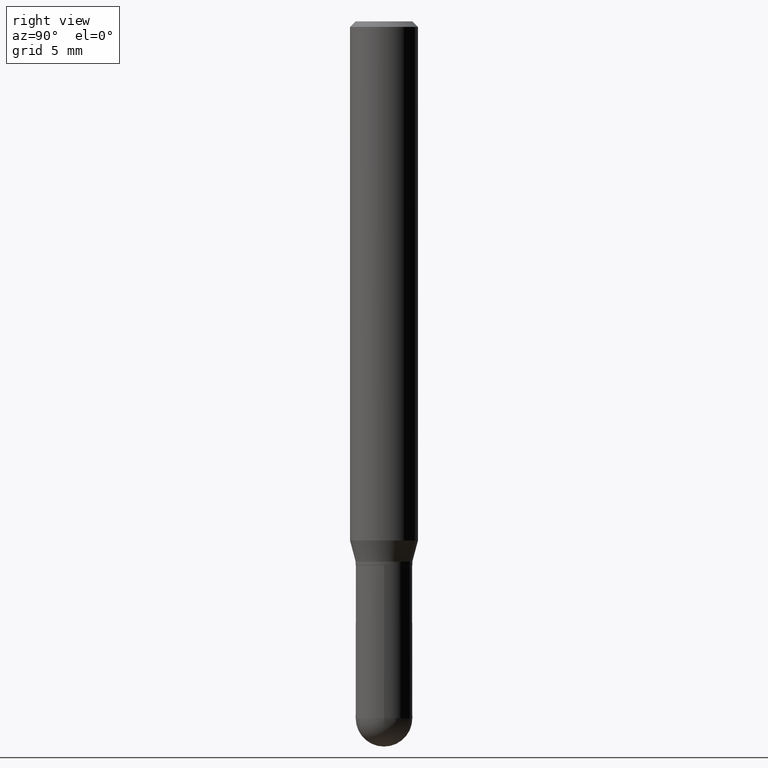
[diagram: clean part render]
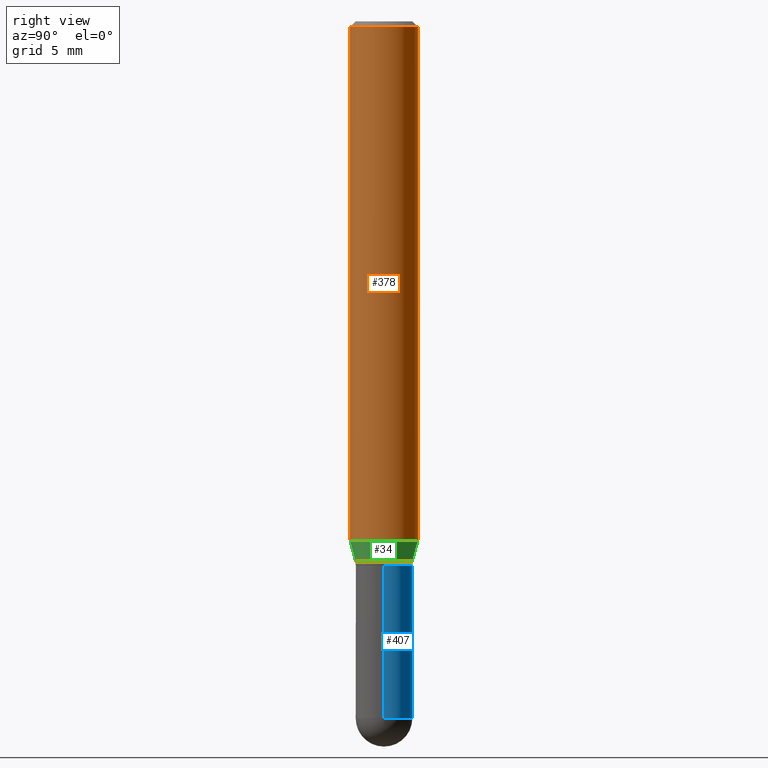
[diagram: same view with three faces highlighted in distinct colors, each labeled with its STEP entity id]
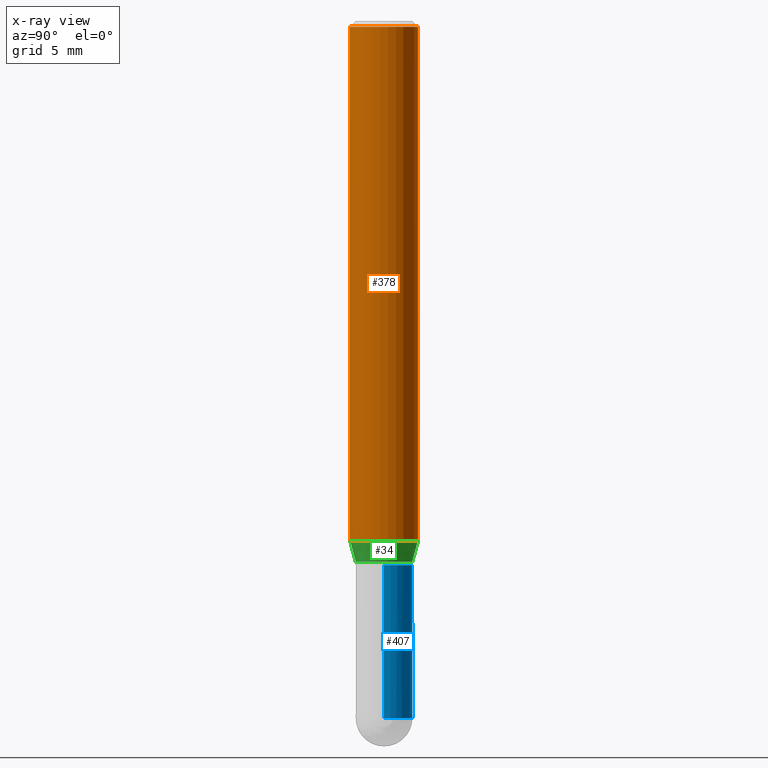
[diagram: x-ray of the same camera — body ghosted, the three highlighted faces saturated]
A machine part, right view with three faces highlighted in distinct colors.
The next image is the same camera in x-ray (body ghosted, the three faces saturated) — at least one of them is partly hidden behind the body in this view.
Their STEP definitions:

[orange] entity #378 — the highlighted cylindrical surface (edge-blend (fillet) strip) has radius 2.3813 mm, axis along (-0, 0, 1).
#13 = VECTOR ( 'NONE', #404, 39.37007874015748143 ) ;
#14 = AXIS2_PLACEMENT_3D ( 'NONE', #191, #271, #434 ) ;
#27 = CARTESIAN_POINT ( 'NONE',  ( 3.501349734392323234E-29, -4.997761978698656219E-15, -1.431593404861545960 ) ) ;
#32 = DIRECTION ( 'NONE',  ( -6.982962677686265922E-15, -1.000000000000000000, 2.913971193241880372E-15 ) ) ;
#65 = DIRECTION ( 'NONE',  ( -6.982962677686265922E-15, -1.000000000000000000, 3.483106191921935160E-15 ) ) ;
#69 = CARTESIAN_POINT ( 'NONE',  ( -6.546527510330523012E-16, -0.09375000000000500988, -1.431593404861545737 ) ) ;
#82 = VERTEX_POINT ( 'NONE', #241 ) ;
#89 = EDGE_CURVE ( 'NONE', #195, #477, #290, .T. ) ;
#90 = CIRCLE ( 'NONE', #381, 0.09375000000000001388 ) ;
#92 = VERTEX_POINT ( 'NONE', #333 ) ;
#109 = ORIENTED_EDGE ( 'NONE', *, *, #136, .T. ) ;
#112 = EDGE_LOOP ( 'NONE', ( #109, #370, #492, #262 ) ) ;
#119 = CYLINDRICAL_SURFACE ( 'NONE', #14, 0.09375000000000001388 ) ;
#136 = EDGE_CURVE ( 'NONE', #195, #92, #90, .T. ) ;
#172 = EDGE_CURVE ( 'NONE', #92, #82, #300, .T. ) ;
#190 = EDGE_CURVE ( 'NONE', #477, #82, #311, .T. ) ;
#191 = CARTESIAN_POINT ( 'NONE',  ( 0.000000000000000000, 0.000000000000000000, 0.000000000000000000 ) ) ;
#195 = VERTEX_POINT ( 'NONE', #69 ) ;
#236 = AXIS2_PLACEMENT_3D ( 'NONE', #341, #385, #65 ) ;
#241 = CARTESIAN_POINT ( 'NONE',  ( 6.661338147751291272E-16, 0.09374999999999995837, -0.01500000000000050078 ) ) ;
#262 = ORIENTED_EDGE ( 'NONE', *, *, #89, .F. ) ;
#271 = DIRECTION ( 'NONE',  ( -2.445771070544258513E-29, 3.491048479077063976E-15, 1.000000000000000000 ) ) ;
#290 = LINE ( 'NONE', #363, #13 ) ;
#300 = LINE ( 'NONE', #424, #397 ) ;
#311 = CIRCLE ( 'NONE', #236, 0.09375000000000001388 ) ;
#333 = CARTESIAN_POINT ( 'NONE',  ( 6.661338147751288313E-16, 0.09374999999999500400, -1.431593404861546182 ) ) ;
#338 = DIRECTION ( 'NONE',  ( -2.445771070544258513E-29, 3.491048479077063976E-15, 1.000000000000000000 ) ) ;
#341 = CARTESIAN_POINT ( 'NONE',  ( 3.668656605816431051E-31, -5.236572718615656977E-17, -0.01500000000000017465 ) ) ;
#363 = CARTESIAN_POINT ( 'NONE',  ( -6.546527510330875041E-16, -0.09375000000000001388, 3.272857949134747847E-16 ) ) ;
#370 = ORIENTED_EDGE ( 'NONE', *, *, #172, .T. ) ;
#378 = ADVANCED_FACE ( 'NONE', ( #473 ), #119, .T. ) ;
#381 = AXIS2_PLACEMENT_3D ( 'NONE', #27, #338, #32 ) ;
#385 = DIRECTION ( 'NONE',  ( -2.445771070544258513E-29, 3.491048479077063976E-15, 1.000000000000000000 ) ) ;
#386 = DIRECTION ( 'NONE',  ( -2.445771070544258232E-29, 3.491048479077063581E-15, 1.000000000000000000 ) ) ;
#397 = VECTOR ( 'NONE', #386, 39.37007874015748143 ) ;
#404 = DIRECTION ( 'NONE',  ( -2.445771070544258232E-29, 3.491048479077063581E-15, 1.000000000000000000 ) ) ;
#424 = CARTESIAN_POINT ( 'NONE',  ( 6.661338147750938256E-16, 0.09375000000000001388, -3.272857949134747847E-16 ) ) ;
#434 = DIRECTION ( 'NONE',  ( -6.982962677686265922E-15, -1.000000000000000000, 3.491048479077063976E-15 ) ) ;
#473 = FACE_OUTER_BOUND ( 'NONE', #112, .T. ) ;
#477 = VERTEX_POINT ( 'NONE', #493 ) ;
#492 = ORIENTED_EDGE ( 'NONE', *, *, #190, .F. ) ;
#493 = CARTESIAN_POINT ( 'NONE',  ( -6.546527510330871097E-16, -0.09375000000000005551, -0.01499999999999984852 ) ) ;

[blue] entity #407 — the highlighted cylindrical surface (edge-blend (fillet) strip) has radius 1.9837 mm, axis along (-0, 0, 1).
#1 = DIRECTION ( 'NONE',  ( -2.445468806185136597E-29, 3.491481338843145583E-15, 1.000000000000000000 ) ) ;
#10 = EDGE_CURVE ( 'NONE', #429, #160, #319, .T. ) ;
#21 = DIRECTION ( 'NONE',  ( -2.445468806185136877E-29, 3.491481338843145188E-15, 1.000000000000000000 ) ) ;
#55 = ORIENTED_EDGE ( 'NONE', *, *, #10, .T. ) ;
#58 = VECTOR ( 'NONE', #21, 39.37007874015748143 ) ;
#62 = CARTESIAN_POINT ( 'NONE',  ( 0.07810000000000000275, -6.519119381820976762E-15, -1.921900000000000164 ) ) ;
#66 = CARTESIAN_POINT ( 'NONE',  ( -0.07810000000000000275, -5.418816120065042244E-15, -1.921900000000000164 ) ) ;
#67 = EDGE_CURVE ( 'NONE', #164, #429, #382, .T. ) ;
#78 = DIRECTION ( 'NONE',  ( 1.000000000000000000, -6.982962677686266711E-15, 0.000000000000000000 ) ) ;
#91 = CARTESIAN_POINT ( 'NONE',  ( 5.453693851273441764E-16, 0.07809999999999325815, -1.921900000000000386 ) ) ;
#95 = LINE ( 'NONE', #126, #58 ) ;
#126 = CARTESIAN_POINT ( 'NONE',  ( 0.07810000000000000275, -5.453693851272974364E-16, 3.808294061896625703E-30 ) ) ;
#137 = DIRECTION ( 'NONE',  ( 1.000000000000000000, -6.982962677686266711E-15, 0.000000000000000000 ) ) ;
#149 = EDGE_CURVE ( 'NONE', #160, #358, #293, .T. ) ;
#152 = EDGE_LOOP ( 'NONE', ( #55, #206, #272, #239, #288 ) ) ;
#154 = AXIS2_PLACEMENT_3D ( 'NONE', #366, #210, #447 ) ;
#160 = VERTEX_POINT ( 'NONE', #66 ) ;
#164 = VERTEX_POINT ( 'NONE', #62 ) ;
#188 = CARTESIAN_POINT ( 'NONE',  ( 0.07810000000000000275, -5.782591393392015613E-15, -1.500000000000000222 ) ) ;
#196 = FACE_OUTER_BOUND ( 'NONE', #152, .T. ) ;
#200 = CARTESIAN_POINT ( 'NONE',  ( 3.668203209277704895E-29, -5.237222008264718177E-15, -1.500000000000000222 ) ) ;
#206 = ORIENTED_EDGE ( 'NONE', *, *, #149, .T. ) ;
#210 = DIRECTION ( 'NONE',  ( -2.445468806185136597E-29, 3.491481338843145583E-15, 1.000000000000000000 ) ) ;
#212 = VERTEX_POINT ( 'NONE', #188 ) ;
#219 = DIRECTION ( 'NONE',  ( -2.445468806185136877E-29, 3.491481338843145188E-15, 1.000000000000000000 ) ) ;
#221 = AXIS2_PLACEMENT_3D ( 'NONE', #273, #398, #355 ) ;
#235 = CARTESIAN_POINT ( 'NONE',  ( -0.07810000000000000275, -5.418816120065042244E-15, -1.500000000000000222 ) ) ;
#239 = ORIENTED_EDGE ( 'NONE', *, *, #464, .F. ) ;
#252 = CIRCLE ( 'NONE', #328, 0.07810000000000000275 ) ;
#272 = ORIENTED_EDGE ( 'NONE', *, *, #316, .F. ) ;
#273 = CARTESIAN_POINT ( 'NONE',  ( 0.000000000000000000, 0.000000000000000000, 0.000000000000000000 ) ) ;
#280 = CARTESIAN_POINT ( 'NONE',  ( 4.699946498607214373E-29, -6.710277985122641264E-15, -1.921900000000000164 ) ) ;
#288 = ORIENTED_EDGE ( 'NONE', *, *, #67, .T. ) ;
#293 = LINE ( 'NONE', #335, #345 ) ;
#313 = CYLINDRICAL_SURFACE ( 'NONE', #221, 0.07810000000000000275 ) ;
#316 = EDGE_CURVE ( 'NONE', #212, #358, #252, .T. ) ;
#319 = CIRCLE ( 'NONE', #154, 0.07810000000000000275 ) ;
#327 = DIRECTION ( 'NONE',  ( -2.445468806185136597E-29, 3.491481338843145583E-15, 1.000000000000000000 ) ) ;
#328 = AXIS2_PLACEMENT_3D ( 'NONE', #200, #1, #78 ) ;
#335 = CARTESIAN_POINT ( 'NONE',  ( -0.07810000000000000275, 5.549338766286382647E-16, -3.841688305489081275E-30 ) ) ;
#345 = VECTOR ( 'NONE', #219, 39.37007874015748143 ) ;
#355 = DIRECTION ( 'NONE',  ( 1.000000000000000000, -6.982962677686266711E-15, 4.876176775795935232E-29 ) ) ;
#358 = VERTEX_POINT ( 'NONE', #235 ) ;
#366 = CARTESIAN_POINT ( 'NONE',  ( 4.699946498607214373E-29, -6.710277985122641264E-15, -1.921900000000000164 ) ) ;
#382 = CIRCLE ( 'NONE', #453, 0.07810000000000000275 ) ;
#398 = DIRECTION ( 'NONE',  ( -2.445468806185136597E-29, 3.491481338843145583E-15, 1.000000000000000000 ) ) ;
#407 = ADVANCED_FACE ( 'NONE', ( #196 ), #313, .T. ) ;
#429 = VERTEX_POINT ( 'NONE', #91 ) ;
#447 = DIRECTION ( 'NONE',  ( 1.000000000000000000, -6.982962677686266711E-15, 0.000000000000000000 ) ) ;
#453 = AXIS2_PLACEMENT_3D ( 'NONE', #280, #327, #137 ) ;
#464 = EDGE_CURVE ( 'NONE', #164, #212, #95, .T. ) ;

[green] entity #34 — the highlighted conical surface has half-angle 15 deg.
#27 = CARTESIAN_POINT ( 'NONE',  ( 3.501349734392323234E-29, -4.997761978698656219E-15, -1.431593404861545960 ) ) ;
#31 = CIRCLE ( 'NONE', #174, 0.07809999999999964193 ) ;
#32 = DIRECTION ( 'NONE',  ( -6.982962677686265922E-15, -1.000000000000000000, 2.913971193241880372E-15 ) ) ;
#34 = ADVANCED_FACE ( 'NONE', ( #86 ), #480, .T. ) ;
#69 = CARTESIAN_POINT ( 'NONE',  ( -6.546527510330523012E-16, -0.09375000000000500988, -1.431593404861545737 ) ) ;
#81 = LINE ( 'NONE', #113, #83 ) ;
#83 = VECTOR ( 'NONE', #267, 39.37007874015748854 ) ;
#86 = FACE_OUTER_BOUND ( 'NONE', #483, .T. ) ;
#90 = CIRCLE ( 'NONE', #381, 0.09375000000000001388 ) ;
#92 = VERTEX_POINT ( 'NONE', #333 ) ;
#94 = CARTESIAN_POINT ( 'NONE',  ( 3.644198895110945173E-29, -5.201662233824825028E-15, -1.489999999999999991 ) ) ;
#113 = CARTESIAN_POINT ( 'NONE',  ( 5.549338766286719885E-16, 0.07809999999999443776, -1.490000000000000213 ) ) ;
#116 = DIRECTION ( 'NONE',  ( -1.807323732225334478E-15, -0.2588190451025187966, 0.9659258262890687563 ) ) ;
#135 = VERTEX_POINT ( 'NONE', #144 ) ;
#136 = EDGE_CURVE ( 'NONE', #195, #92, #90, .T. ) ;
#138 = CARTESIAN_POINT ( 'NONE',  ( 3.644198895110945173E-29, -5.201662233824825028E-15, -1.489999999999999991 ) ) ;
#143 = DIRECTION ( 'NONE',  ( -6.982962677686265922E-15, -1.000000000000000000, 3.497884755011876582E-15 ) ) ;
#144 = CARTESIAN_POINT ( 'NONE',  ( 6.105338457019004099E-16, 0.07809999999999443776, -1.490000000000000213 ) ) ;
#162 = ORIENTED_EDGE ( 'NONE', *, *, #301, .T. ) ;
#174 = AXIS2_PLACEMENT_3D ( 'NONE', #138, #452, #143 ) ;
#187 = EDGE_CURVE ( 'NONE', #211, #135, #31, .T. ) ;
#195 = VERTEX_POINT ( 'NONE', #69 ) ;
#211 = VERTEX_POINT ( 'NONE', #506 ) ;
#230 = ORIENTED_EDGE ( 'NONE', *, *, #299, .F. ) ;
#249 = DIRECTION ( 'NONE',  ( -2.445771070544258513E-29, 3.491048479077063976E-15, 1.000000000000000000 ) ) ;
#267 = DIRECTION ( 'NONE',  ( 1.839019923739604654E-15, 0.2588190451025255689, 0.9659258262890669799 ) ) ;
#276 = LINE ( 'NONE', #469, #412 ) ;
#278 = ORIENTED_EDGE ( 'NONE', *, *, #136, .F. ) ;
#299 = EDGE_CURVE ( 'NONE', #211, #195, #276, .T. ) ;
#301 = EDGE_CURVE ( 'NONE', #135, #92, #81, .T. ) ;
#323 = DIRECTION ( 'NONE',  ( -6.982962677686265922E-15, -1.000000000000000000, 3.497884755011876582E-15 ) ) ;
#333 = CARTESIAN_POINT ( 'NONE',  ( 6.661338147751288313E-16, 0.09374999999999500400, -1.431593404861546182 ) ) ;
#338 = DIRECTION ( 'NONE',  ( -2.445771070544258513E-29, 3.491048479077063976E-15, 1.000000000000000000 ) ) ;
#344 = AXIS2_PLACEMENT_3D ( 'NONE', #94, #249, #323 ) ;
#381 = AXIS2_PLACEMENT_3D ( 'NONE', #27, #338, #32 ) ;
#412 = VECTOR ( 'NONE', #116, 39.37007874015748854 ) ;
#439 = ORIENTED_EDGE ( 'NONE', *, *, #187, .T. ) ;
#452 = DIRECTION ( 'NONE',  ( -2.445771070544258513E-29, 3.491048479077063976E-15, 1.000000000000000000 ) ) ;
#469 = CARTESIAN_POINT ( 'NONE',  ( -5.453693851272583878E-16, -0.07810000000000484610, -1.489999999999999769 ) ) ;
#480 = CONICAL_SURFACE ( 'NONE', #344, 0.07809999999999964193, 0.2617993877991509066 ) ;
#483 = EDGE_LOOP ( 'NONE', ( #439, #162, #278, #230 ) ) ;
#506 = CARTESIAN_POINT ( 'NONE',  ( -5.453693851272583878E-16, -0.07810000000000484610, -1.489999999999999769 ) ) ;